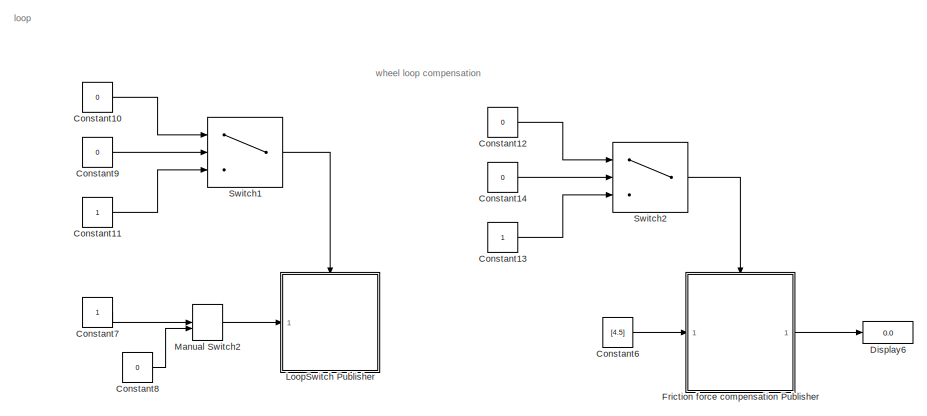
[diagram: root canvas - part 1/3, top right region]
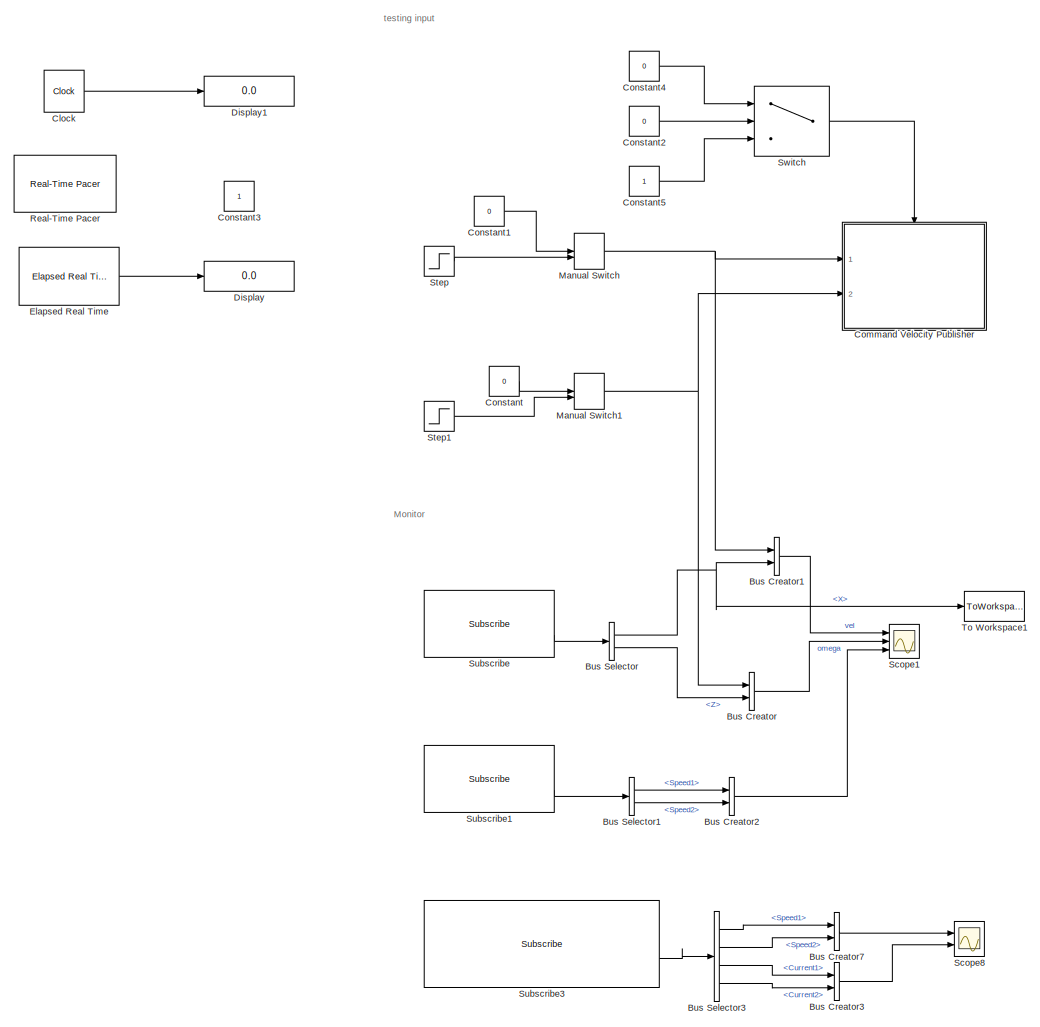
[diagram: root canvas - part 2/3, middle left region]
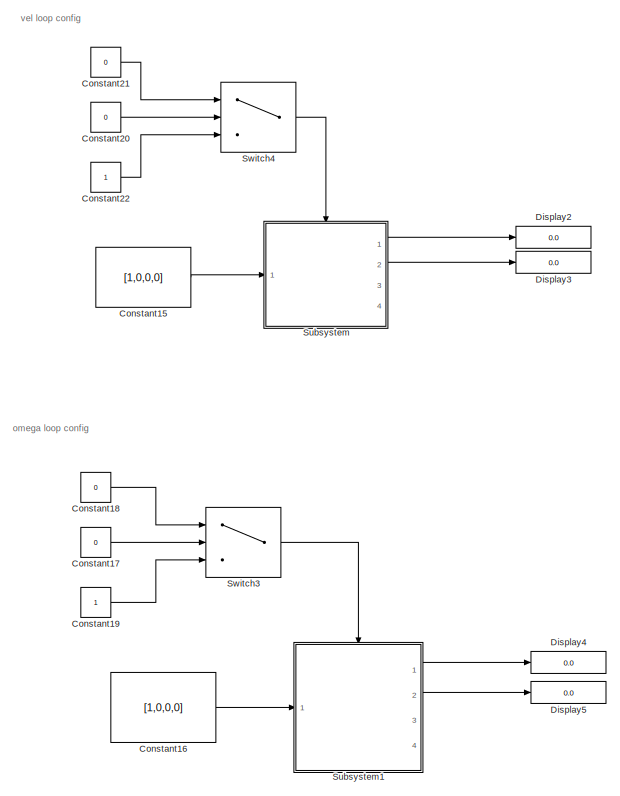
[diagram: root canvas - part 3/3, bottom right region]
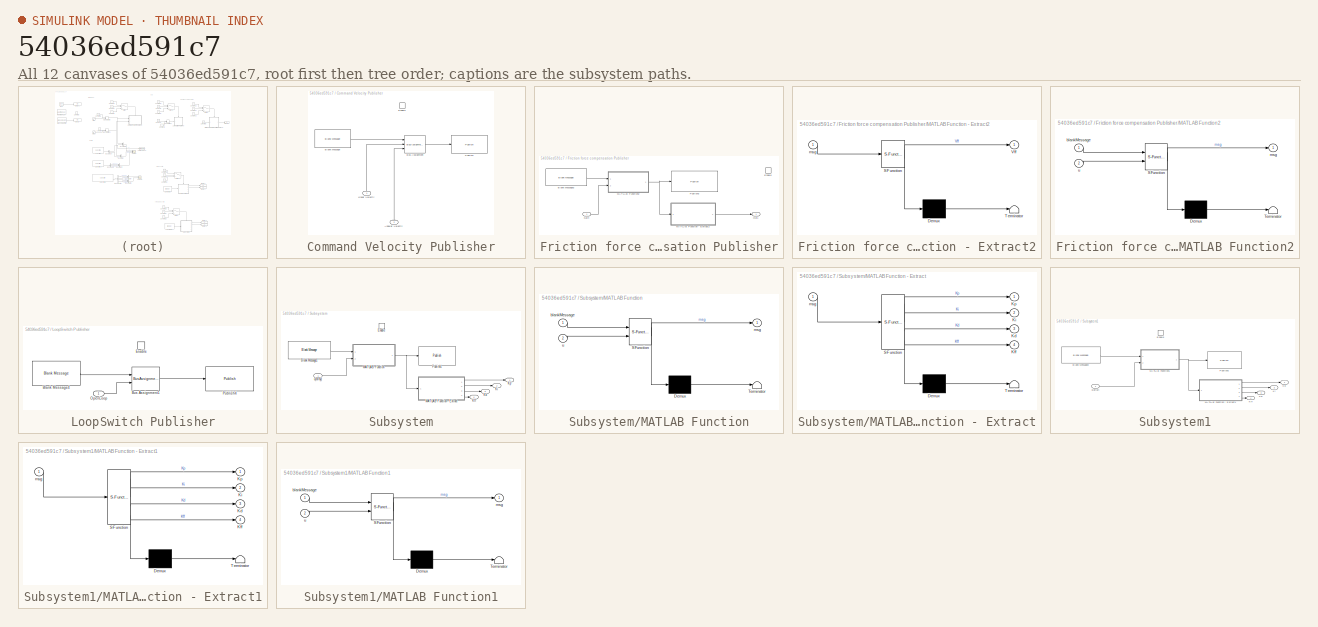
[diagram: thumbnail index - all 12 canvases of the model, root first then tree order]
MODEL slx_54036ed591c7
KIND model
CONFIG AbsTol = auto
CONFIG FixedStep = 0.1
CONFIG MaxStep = auto
CONFIG MinStep = auto
CONFIG RelTol = 1e-3
CONFIG SampleTimeConstraint = Unconstrained
CONFIG Solver = FixedStepDiscrete
CONFIG SolverMode = Auto
CONFIG SolverName = FixedStepDiscrete
CONFIG StartTime = 0.0
CONFIG StopTime = inf
BLOCK [BusCreator] Bus Creator
  DisplayOption = bar
  InheritFromInputs = on
  Inputs = 2
  Ports = [2, 1]
BLOCK [BusCreator] Bus Creator1
  DisplayOption = bar
  InheritFromInputs = on
  Inputs = 2
  Ports = [2, 1]
BLOCK [BusCreator] Bus Creator2
  DisplayOption = bar
  InheritFromInputs = on
  Inputs = 2
  Ports = [2, 1]
BLOCK [BusCreator] Bus Creator3
  DisplayOption = bar
  InheritFromInputs = on
  Inputs = 2
  Ports = [2, 1]
BLOCK [BusCreator] Bus Creator7
  DisplayOption = bar
  InheritFromInputs = on
  Inputs = 2
  Ports = [2, 1]
BLOCK [BusSelector] Bus Selector
  OutputSignals = Linear.X,Angular.Z
  Ports = [1, 2]
BLOCK [BusSelector] Bus Selector1
  OutputSignals = Speed1,Speed2
  Ports = [1, 2]
BLOCK [BusSelector] Bus Selector3
  OutputSignals = Speed1,Speed2,Current1,Current2
  Ports = [1, 4]
BLOCK [Clock] Clock
  Decimation = 1
  DisplayTime = on
BLOCK [SubSystem] Command Velocity Publisher
  Ports = [2, 0, 1]
  RequestExecContextInheritance = off
  Variant = off
BLOCK [Inport] Command Velocity Publisher/Angular Velocity
  IconDisplay = Port number
  Port = 2
BLOCK [Reference] Command Velocity Publisher/Blank Message  REF=robotlib/Blank Message
  Ports = [0, 1]
  SourceBlock = robotlib/Blank Message
  SourceLibraryInfo = This block requires Robotics System Toolbox
  SourceType = ROS Blank Message
BLOCK [BusAssignment] Command Velocity Publisher/Bus Assignment
  AssignedSignals = Linear.X,Angular.Z
  Ports = [3, 1]
BLOCK [EnablePort] Command Velocity Publisher/Enable
  Ports = []
BLOCK [Inport] Command Velocity Publisher/Linear Velocity
  IconDisplay = Port number
BLOCK [Reference] Command Velocity Publisher/Publish  REF=robotlib/Publish
  Ports = [1]
  SourceBlock = robotlib/Publish
  SourceLibraryInfo = This block requires Robotics System Toolbox
  SourceType = ROS Publish
BLOCK [Constant] Constant
  OutDataTypeStr = double
  SampleTime = -1
  Value = 0
BLOCK [Constant] Constant1
  OutDataTypeStr = double
  SampleTime = -1
  Value = 0
BLOCK [Constant] Constant10
  OutDataTypeStr = boolean
  SampleTime = -1
  Value = 0
BLOCK [Constant] Constant11
  OutDataTypeStr = boolean
  SampleTime = -1
BLOCK [Constant] Constant12
  OutDataTypeStr = boolean
  SampleTime = -1
  Value = 0
BLOCK [Constant] Constant13
  OutDataTypeStr = boolean
  SampleTime = -1
BLOCK [Constant] Constant14
  OutDataTypeStr = double
  SampleTime = -1
  Value = 0
BLOCK [Constant] Constant15
  Value = [1,0,0,0]
BLOCK [Constant] Constant16
  Value = [1,0,0,0]
BLOCK [Constant] Constant17
  OutDataTypeStr = double
  SampleTime = -1
  Value = 0
BLOCK [Constant] Constant18
  OutDataTypeStr = boolean
  SampleTime = -1
  Value = 0
BLOCK [Constant] Constant19
  OutDataTypeStr = boolean
  SampleTime = -1
BLOCK [Constant] Constant2
  OutDataTypeStr = double
  SampleTime = -1
  Value = 0
BLOCK [Constant] Constant20
  OutDataTypeStr = double
  SampleTime = -1
  Value = 0
BLOCK [Constant] Constant21
  OutDataTypeStr = boolean
  SampleTime = -1
  Value = 0
BLOCK [Constant] Constant22
  OutDataTypeStr = boolean
  SampleTime = -1
BLOCK [Constant] Constant3
  IOType = siggen
BLOCK [Constant] Constant4
  OutDataTypeStr = boolean
  SampleTime = -1
  Value = 0
BLOCK [Constant] Constant5
  OutDataTypeStr = boolean
  SampleTime = -1
BLOCK [Constant] Constant6
  Value = [4.5]
BLOCK [Constant] Constant7
  OutDataTypeStr = boolean
BLOCK [Constant] Constant8
  OutDataTypeStr = boolean
  Value = 0
BLOCK [Constant] Constant9
  OutDataTypeStr = double
  SampleTime = -1
  Value = 0
BLOCK [Display] Display
  Decimation = 1
  Ports = [1]
BLOCK [Display] Display1
  Decimation = 1
  Ports = [1]
BLOCK [Display] Display2
  Decimation = 1
  Ports = [1]
BLOCK [Display] Display3
  Decimation = 1
  Ports = [1]
BLOCK [Display] Display4
  Decimation = 1
  Ports = [1]
BLOCK [Display] Display5
  Decimation = 1
  Ports = [1]
BLOCK [Display] Display6
  Decimation = 1
  Ports = [1]
BLOCK [Reference] Elapsed Real Time  REF=realtime_pacer_lib/Elapsed Real Time
  Ports = [0, 1]
  SourceBlock = realtime_pacer_lib/Elapsed Real Time
  SourceType = RealTime_Elapsed
BLOCK [SubSystem] Friction force compensation Publisher
  Ports = [1, 1, 1]
  RequestExecContextInheritance = off
  Variant = off
BLOCK [Reference] Friction force compensation Publisher/Blank Message3  REF=robotlib/Blank Message
  Ports = [0, 1]
  SourceBlock = robotlib/Blank Message
  SourceLibraryInfo = This block requires Robotics System Toolbox
  SourceType = ROS Blank Message
BLOCK [EnablePort] Friction force compensation Publisher/Enable
  Ports = []
BLOCK [Inport] Friction force compensation Publisher/Gain
  IconDisplay = Port number
BLOCK [SubSystem] Friction force compensation Publisher/MATLAB Function - Extract2
  ErrorFcn = Stateflow.Translate.translate
  PermitHierarchicalResolution = ExplicitOnly
  Ports = [1, 1]
  RequestExecContextInheritance = off
  SFBlockType = MATLAB Function
  TreatAsAtomicUnit = on
  Variant = off
BLOCK [Demux] Friction force compensation Publisher/MATLAB Function - Extract2/ Demux 
  Outputs = 1
  Ports = [1, 1]
BLOCK [S-Function] Friction force compensation Publisher/MATLAB Function - Extract2/ SFunction 
  EnableBusSupport = on
  FunctionName = sf_sfun
  PortCounts = [1 2]
  Ports = [1, 2]
  SFunctionDeploymentMode = off
  Tag = Stateflow S-Function angelbot_ROScommand 4
BLOCK [Terminator] Friction force compensation Publisher/MATLAB Function - Extract2/ Terminator 
BLOCK [Outport] Friction force compensation Publisher/MATLAB Function - Extract2/Vff
  IconDisplay = Port number
BLOCK [Inport] Friction force compensation Publisher/MATLAB Function - Extract2/msg
  IconDisplay = Port number
BLOCK [SubSystem] Friction force compensation Publisher/MATLAB Function2
  ErrorFcn = Stateflow.Translate.translate
  PermitHierarchicalResolution = ExplicitOnly
  Ports = [2, 1]
  RequestExecContextInheritance = off
  SFBlockType = MATLAB Function
  TreatAsAtomicUnit = on
  Variant = off
BLOCK [Demux] Friction force compensation Publisher/MATLAB Function2/ Demux 
  Outputs = 1
  Ports = [1, 1]
BLOCK [S-Function] Friction force compensation Publisher/MATLAB Function2/ SFunction 
  EnableBusSupport = on
  FunctionName = sf_sfun
  PortCounts = [2 2]
  Ports = [2, 2]
  SFunctionDeploymentMode = off
  Tag = Stateflow S-Function angelbot_ROScommand 5
BLOCK [Terminator] Friction force compensation Publisher/MATLAB Function2/ Terminator 
BLOCK [Inport] Friction force compensation Publisher/MATLAB Function2/blankMessage
  IconDisplay = Port number
BLOCK [Outport] Friction force compensation Publisher/MATLAB Function2/msg
  IconDisplay = Port number
BLOCK [Inport] Friction force compensation Publisher/MATLAB Function2/u
  IconDisplay = Port number
  Port = 2
BLOCK [Outport] Friction force compensation Publisher/Out1
  IconDisplay = Port number
BLOCK [Reference] Friction force compensation Publisher/Publish3  REF=robotlib/Publish
  Ports = [1]
  SourceBlock = robotlib/Publish
  SourceLibraryInfo = This block requires Robotics System Toolbox
  SourceType = ROS Publish
BLOCK [SubSystem] LoopSwitch Publisher
  Ports = [1, 0, 1]
  RequestExecContextInheritance = off
  Variant = off
BLOCK [Reference] LoopSwitch Publisher/Blank Message4  REF=robotlib/Blank Message
  Ports = [0, 1]
  SourceBlock = robotlib/Blank Message
  SourceLibraryInfo = This block requires Robotics System Toolbox
  SourceType = ROS Blank Message
BLOCK [BusAssignment] LoopSwitch Publisher/Bus Assignment1
  AssignedSignals = Data
  Ports = [2, 1]
BLOCK [EnablePort] LoopSwitch Publisher/Enable
  Ports = []
BLOCK [Inport] LoopSwitch Publisher/OpenLoop
  IconDisplay = Port number
BLOCK [Reference] LoopSwitch Publisher/Publish4  REF=robotlib/Publish
  Ports = [1]
  SourceBlock = robotlib/Publish
  SourceLibraryInfo = This block requires Robotics System Toolbox
  SourceType = ROS Publish
BLOCK [ManualSwitch] Manual Switch
BLOCK [ManualSwitch] Manual Switch1
BLOCK [ManualSwitch] Manual Switch2
BLOCK [Reference] Real-Time Pacer  REF=realtime_pacer_lib/Real-Time Pacer
  Ports = []
  SourceBlock = realtime_pacer_lib/Real-Time Pacer
  SourceType = RealTime_Pacer
BLOCK [Scope] Scope1
  NumInputPorts = 3
  Ports = [3]
  ScopeSpecificationString = Simulink.scopes.TimeScopeBlockCfg('CurrentConfiguration', extmgr.ConfigurationSet(extmgr.Configuration('Core','General UI',true),extmgr.Configuration('Core','Source UI',true),extmgr.Configuration('Sources','WiredSimulink',true,'DataLoggingVariableName','ScopeV','DataLogging',true,'DataLoggingSaveFormat','StructureWithTime'),extmgr.Configuration('Visuals','Time Domain',true,'SerializedDisplays',{st...<+3113ch>
BLOCK [Scope] Scope8
  NumInputPorts = 2
  Ports = [2]
  ScopeSpecificationString = Simulink.scopes.TimeScopeBlockCfg('CurrentConfiguration', extmgr.ConfigurationSet(extmgr.Configuration('Core','General UI',true),extmgr.Configuration('Core','Source UI',true),extmgr.Configuration('Sources','WiredSimulink',true,'DataLoggingVariableName','ScopeData1','DataLogging',true,'DataLoggingSaveFormat','StructureWithTime'),extmgr.Configuration('Visuals','Time Domain',true,'SerializedDisplays'...<+2320ch>
BLOCK [Step] Step
  After = 6
  Time = 0
BLOCK [Step] Step1
  After = 0
  Time = 0
BLOCK [Reference] Subscribe  REF=robotlib/Subscribe
  Ports = [0, 2]
  SourceBlock = robotlib/Subscribe
  SourceLibraryInfo = This block requires Robotics System Toolbox
  SourceType = ROS Subscribe
BLOCK [Reference] Subscribe1  REF=robotlib/Subscribe
  Ports = [0, 2]
  SourceBlock = robotlib/Subscribe
  SourceLibraryInfo = This block requires Robotics System Toolbox
  SourceType = ROS Subscribe
BLOCK [Reference] Subscribe3  REF=robotlib/Subscribe
  Ports = [0, 2]
  SourceBlock = robotlib/Subscribe
  SourceLibraryInfo = This block requires Robotics System Toolbox
  SourceType = ROS Subscribe
BLOCK [SubSystem] Subsystem
  Ports = [1, 4, 1]
  RequestExecContextInheritance = off
  Variant = off
BLOCK [Reference] Subsystem/Blank Message1  REF=robotlib/Blank Message
  Ports = [0, 1]
  SourceBlock = robotlib/Blank Message
  SourceLibraryInfo = This block requires Robotics System Toolbox
  SourceType = ROS Blank Message
BLOCK [EnablePort] Subsystem/Enable
  Ports = []
BLOCK [Outport] Subsystem/Kd
  IconDisplay = Port number
  Port = 3
BLOCK [Outport] Subsystem/Kff
  IconDisplay = Port number
  Port = 4
BLOCK [Outport] Subsystem/Ki
  IconDisplay = Port number
  Port = 2
BLOCK [Outport] Subsystem/Kp
  IconDisplay = Port number
BLOCK [SubSystem] Subsystem/MATLAB Function
  ErrorFcn = Stateflow.Translate.translate
  PermitHierarchicalResolution = ExplicitOnly
  Ports = [2, 1]
  RequestExecContextInheritance = off
  SFBlockType = MATLAB Function
  TreatAsAtomicUnit = on
  Variant = off
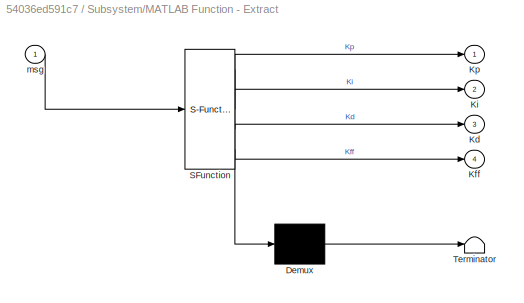
BLOCK [SubSystem] Subsystem/MATLAB Function - Extract
  ErrorFcn = Stateflow.Translate.translate
  PermitHierarchicalResolution = ExplicitOnly
  Ports = [1, 4]
  RequestExecContextInheritance = off
  SFBlockType = MATLAB Function
  TreatAsAtomicUnit = on
  Variant = off
BLOCK [Demux] Subsystem/MATLAB Function - Extract/ Demux 
  Outputs = 1
  Ports = [1, 1]
BLOCK [S-Function] Subsystem/MATLAB Function - Extract/ SFunction 
  EnableBusSupport = on
  FunctionName = sf_sfun
  PortCounts = [1 5]
  Ports = [1, 5]
  SFunctionDeploymentMode = off
  Tag = Stateflow S-Function angelbot_ROScommand 6
BLOCK [Terminator] Subsystem/MATLAB Function - Extract/ Terminator 
BLOCK [Outport] Subsystem/MATLAB Function - Extract/Kd
  IconDisplay = Port number
  Port = 3
BLOCK [Outport] Subsystem/MATLAB Function - Extract/Kff
  IconDisplay = Port number
  Port = 4
BLOCK [Outport] Subsystem/MATLAB Function - Extract/Ki
  IconDisplay = Port number
  Port = 2
BLOCK [Outport] Subsystem/MATLAB Function - Extract/Kp
  IconDisplay = Port number
BLOCK [Inport] Subsystem/MATLAB Function - Extract/msg
  IconDisplay = Port number
BLOCK [Demux] Subsystem/MATLAB Function/ Demux 
  Outputs = 1
  Ports = [1, 1]
BLOCK [S-Function] Subsystem/MATLAB Function/ SFunction 
  EnableBusSupport = on
  FunctionName = sf_sfun
  PortCounts = [2 2]
  Ports = [2, 2]
  SFunctionDeploymentMode = off
  Tag = Stateflow S-Function angelbot_ROScommand 2
BLOCK [Terminator] Subsystem/MATLAB Function/ Terminator 
BLOCK [Inport] Subsystem/MATLAB Function/blankMessage
  IconDisplay = Port number
BLOCK [Outport] Subsystem/MATLAB Function/msg
  IconDisplay = Port number
BLOCK [Inport] Subsystem/MATLAB Function/u
  IconDisplay = Port number
  Port = 2
BLOCK [Reference] Subsystem/Publish1  REF=robotlib/Publish
  Ports = [1]
  SourceBlock = robotlib/Publish
  SourceLibraryInfo = This block requires Robotics System Toolbox
  SourceType = ROS Publish
BLOCK [Inport] Subsystem/u(array)
  IconDisplay = Port number
BLOCK [SubSystem] Subsystem1
  Ports = [1, 4, 1]
  RequestExecContextInheritance = off
  Variant = off
BLOCK [Reference] Subsystem1/Blank Message2  REF=robotlib/Blank Message
  Ports = [0, 1]
  SourceBlock = robotlib/Blank Message
  SourceLibraryInfo = This block requires Robotics System Toolbox
  SourceType = ROS Blank Message
BLOCK [EnablePort] Subsystem1/Enable
  Ports = []
BLOCK [Outport] Subsystem1/Kd
  IconDisplay = Port number
  Port = 3
BLOCK [Outport] Subsystem1/Kff
  IconDisplay = Port number
  Port = 4
BLOCK [Outport] Subsystem1/Ki
  IconDisplay = Port number
  Port = 2
BLOCK [Outport] Subsystem1/Kp
  IconDisplay = Port number
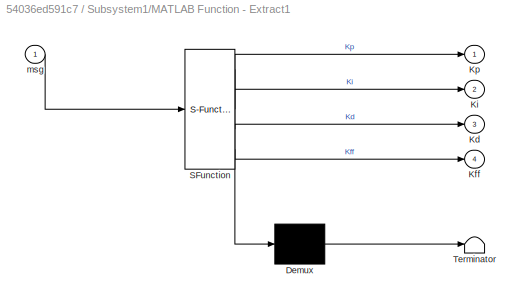
BLOCK [SubSystem] Subsystem1/MATLAB Function - Extract1
  ErrorFcn = Stateflow.Translate.translate
  PermitHierarchicalResolution = ExplicitOnly
  Ports = [1, 4]
  RequestExecContextInheritance = off
  SFBlockType = MATLAB Function
  TreatAsAtomicUnit = on
  Variant = off
BLOCK [Demux] Subsystem1/MATLAB Function - Extract1/ Demux 
  Outputs = 1
  Ports = [1, 1]
BLOCK [S-Function] Subsystem1/MATLAB Function - Extract1/ SFunction 
  EnableBusSupport = on
  FunctionName = sf_sfun
  PortCounts = [1 5]
  Ports = [1, 5]
  SFunctionDeploymentMode = off
  Tag = Stateflow S-Function angelbot_ROScommand 1
BLOCK [Terminator] Subsystem1/MATLAB Function - Extract1/ Terminator 
BLOCK [Outport] Subsystem1/MATLAB Function - Extract1/Kd
  IconDisplay = Port number
  Port = 3
BLOCK [Outport] Subsystem1/MATLAB Function - Extract1/Kff
  IconDisplay = Port number
  Port = 4
BLOCK [Outport] Subsystem1/MATLAB Function - Extract1/Ki
  IconDisplay = Port number
  Port = 2
BLOCK [Outport] Subsystem1/MATLAB Function - Extract1/Kp
  IconDisplay = Port number
BLOCK [Inport] Subsystem1/MATLAB Function - Extract1/msg
  IconDisplay = Port number
BLOCK [SubSystem] Subsystem1/MATLAB Function1
  ErrorFcn = Stateflow.Translate.translate
  PermitHierarchicalResolution = ExplicitOnly
  Ports = [2, 1]
  RequestExecContextInheritance = off
  SFBlockType = MATLAB Function
  TreatAsAtomicUnit = on
  Variant = off
BLOCK [Demux] Subsystem1/MATLAB Function1/ Demux 
  Outputs = 1
  Ports = [1, 1]
BLOCK [S-Function] Subsystem1/MATLAB Function1/ SFunction 
  EnableBusSupport = on
  FunctionName = sf_sfun
  PortCounts = [2 2]
  Ports = [2, 2]
  SFunctionDeploymentMode = off
  Tag = Stateflow S-Function angelbot_ROScommand 3
BLOCK [Terminator] Subsystem1/MATLAB Function1/ Terminator 
BLOCK [Inport] Subsystem1/MATLAB Function1/blankMessage
  IconDisplay = Port number
BLOCK [Outport] Subsystem1/MATLAB Function1/msg
  IconDisplay = Port number
BLOCK [Inport] Subsystem1/MATLAB Function1/u
  IconDisplay = Port number
  Port = 2
BLOCK [Reference] Subsystem1/Publish2  REF=robotlib/Publish
  Ports = [1]
  SourceBlock = robotlib/Publish
  SourceLibraryInfo = This block requires Robotics System Toolbox
  SourceType = ROS Publish
BLOCK [Inport] Subsystem1/u(array)
  IconDisplay = Port number
BLOCK [Switch] Switch
  InputSameDT = off
  SaturateOnIntegerOverflow = off
BLOCK [Switch] Switch1
  InputSameDT = off
  SaturateOnIntegerOverflow = off
BLOCK [Switch] Switch2
  InputSameDT = off
  SaturateOnIntegerOverflow = off
BLOCK [Switch] Switch3
  InputSameDT = off
  SaturateOnIntegerOverflow = off
BLOCK [Switch] Switch4
  InputSameDT = off
  SaturateOnIntegerOverflow = off
BLOCK [ToWorkspace] To Workspace1
  FixptAsFi = on
  MaxDataPoints = inf
  Ports = [1]
  SampleTime = -1
  Save2DSignal = 3-D array (concatenate along third dimension)
  SaveFormat = Timeseries
  VariableName = simout1
ANNOTATION (root): Monitor
ANNOTATION (root): loop
ANNOTATION (root): omega loop config
ANNOTATION (root): testing input
ANNOTATION (root): vel loop config
ANNOTATION (root): wheel loop compensation
LINE Bus Creator1:1 -> Scope1:1
LINE Bus Creator2:1 -> Scope1:3
LINE Bus Creator3:1 -> Scope8:2
LINE Bus Creator7:1 -> Scope8:1
LINE Bus Creator:1 -> Scope1:2
LINE Bus Selector1:1 -> Bus Creator2:1
LINE Bus Selector1:2 -> Bus Creator2:2
LINE Bus Selector3:1 -> Bus Creator7:1
LINE Bus Selector3:2 -> Bus Creator7:2
LINE Bus Selector3:3 -> Bus Creator3:1
LINE Bus Selector3:4 -> Bus Creator3:2
NET Bus Selector:1 -> Bus Creator1:2, To Workspace1:1
LINE Bus Selector:2 -> Bus Creator:2
LINE Clock:1 -> Display1:1
LINE Command Velocity Publisher/Angular Velocity:1 -> Command Velocity Publisher/Bus Assignment:3
LINE Command Velocity Publisher/Blank Message:1 -> Command Velocity Publisher/Bus Assignment:1
LINE Command Velocity Publisher/Bus Assignment:1 -> Command Velocity Publisher/Publish:1
LINE Command Velocity Publisher/Linear Velocity:1 -> Command Velocity Publisher/Bus Assignment:2
LINE Constant10:1 -> Switch1:1
LINE Constant11:1 -> Switch1:3
LINE Constant12:1 -> Switch2:1
LINE Constant13:1 -> Switch2:3
LINE Constant14:1 -> Switch2:2
LINE Constant15:1 -> Subsystem:1
LINE Constant16:1 -> Subsystem1:1
LINE Constant17:1 -> Switch3:2
LINE Constant18:1 -> Switch3:1
LINE Constant19:1 -> Switch3:3
LINE Constant1:1 -> Manual Switch:1
LINE Constant20:1 -> Switch4:2
LINE Constant21:1 -> Switch4:1
LINE Constant22:1 -> Switch4:3
LINE Constant2:1 -> Switch:2
LINE Constant4:1 -> Switch:1
LINE Constant5:1 -> Switch:3
LINE Constant6:1 -> Friction force compensation Publisher:1
LINE Constant7:1 -> Manual Switch2:1
LINE Constant8:1 -> Manual Switch2:2
LINE Constant9:1 -> Switch1:2
LINE Constant:1 -> Manual Switch1:1
LINE Elapsed Real Time:1 -> Display:1
LINE Friction force compensation Publisher/Blank Message3:1 -> Friction force compensation Publisher/MATLAB Function2:1
LINE Friction force compensation Publisher/Gain:1 -> Friction force compensation Publisher/MATLAB Function2:2
LINE Friction force compensation Publisher/MATLAB Function - Extract2:1 -> Friction force compensation Publisher/Out1:1
NET Friction force compensation Publisher/MATLAB Function2:1 -> Friction force compensation Publisher/MATLAB Function - Extract2:1, Friction force compensation Publisher/Publish3:1
LINE Friction force compensation Publisher:1 -> Display6:1
LINE LoopSwitch Publisher/Blank Message4:1 -> LoopSwitch Publisher/Bus Assignment1:1
LINE LoopSwitch Publisher/Bus Assignment1:1 -> LoopSwitch Publisher/Publish4:1
LINE LoopSwitch Publisher/OpenLoop:1 -> LoopSwitch Publisher/Bus Assignment1:2
NET Manual Switch1:1 -> Bus Creator:1, Command Velocity Publisher:2
LINE Manual Switch2:1 -> LoopSwitch Publisher:1
NET Manual Switch:1 -> Bus Creator1:1, Command Velocity Publisher:1
LINE Step1:1 -> Manual Switch1:2
LINE Step:1 -> Manual Switch:2
LINE Subscribe1:2 -> Bus Selector1:1
LINE Subscribe3:2 -> Bus Selector3:1
LINE Subscribe:2 -> Bus Selector:1
LINE Subsystem/Blank Message1:1 -> Subsystem/MATLAB Function:1
LINE Subsystem/MATLAB Function - Extract:1 -> Subsystem/Kp:1
LINE Subsystem/MATLAB Function - Extract:2 -> Subsystem/Ki:1
LINE Subsystem/MATLAB Function - Extract:3 -> Subsystem/Kd:1
LINE Subsystem/MATLAB Function - Extract:4 -> Subsystem/Kff:1
NET Subsystem/MATLAB Function:1 -> Subsystem/MATLAB Function - Extract:1, Subsystem/Publish1:1
LINE Subsystem/u(array):1 -> Subsystem/MATLAB Function:2
LINE Subsystem1/Blank Message2:1 -> Subsystem1/MATLAB Function1:1
LINE Subsystem1/MATLAB Function - Extract1:1 -> Subsystem1/Kp:1
LINE Subsystem1/MATLAB Function - Extract1:2 -> Subsystem1/Ki:1
LINE Subsystem1/MATLAB Function - Extract1:3 -> Subsystem1/Kd:1
LINE Subsystem1/MATLAB Function - Extract1:4 -> Subsystem1/Kff:1
NET Subsystem1/MATLAB Function1:1 -> Subsystem1/MATLAB Function - Extract1:1, Subsystem1/Publish2:1
LINE Subsystem1/u(array):1 -> Subsystem1/MATLAB Function1:2
LINE Subsystem1:1 -> Display4:1
LINE Subsystem1:2 -> Display5:1
LINE Subsystem:1 -> Display2:1
LINE Subsystem:2 -> Display3:1
LINE Switch1:1 -> LoopSwitch Publisher:enable
LINE Switch2:1 -> Friction force compensation Publisher:enable
LINE Switch3:1 -> Subsystem1:enable
LINE Switch4:1 -> Subsystem:enable
LINE Switch:1 -> Command Velocity Publisher:enable
note: NET lines group one-source signal fan-out (src -> all destinations, sorted); 1:1 wires keep LINE
CHART Subsystem1/MATLAB Function - Extract1 states=1 transitions=1
  STATE_LABEL 'eML_blk_kernel()'
  STATE_LABEL 'SCRIPT:\nfunction [Kp,Ki,Kd,Kff] = extractNestedArrayMessages(msg)\n%#codegen\n\n% geometry_msgs/PoseArray consists of\n%          Header: [1x1 Header]\n%           Poses: [nx1 Pose]\n\n% Poses is an array of "geometry_msgs/Pose", which consists of\n%        Position: [1x1 Point]\n%     Orientation: [1x1 Quaternion]\n\n% Position is "geometry_msgs/Point", which consists of\n%               X: 0\n%              ...<+358ch>'
CHART Subsystem/MATLAB Function states=1 transitions=1
  STATE_LABEL 'eML_blk_kernel()'
  STATE_LABEL 'SCRIPT:\nfunction msg = assignArrayMessages(blankMessage,u)\n%#codegen\n\n% To set datatype of MSG output:\n%  1. Create buses for this model: robotics.ros.createSimulinkBus(gcs)\n%  1. Click "Edit Data" in  Toolstrip to open "Ports and Data Manager"\n%  2. Select MSG and set datatype to "Bus: SL_Bus_<modelname>_<messageType>"\n% See: \n% http://www.mathworks.com/help/simulink/ug/create-structures-in-matla...<+912ch>'
CHART Subsystem1/MATLAB Function1 states=1 transitions=1
  STATE_LABEL 'eML_blk_kernel()'
  STATE_LABEL 'SCRIPT:\nfunction msg = assignArrayMessages(blankMessage,u)\n%#codegen\n\n% To set datatype of MSG output:\n%  1. Create buses for this model: robotics.ros.createSimulinkBus(gcs)\n%  1. Click "Edit Data" in  Toolstrip to open "Ports and Data Manager"\n%  2. Select MSG and set datatype to "Bus: SL_Bus_<modelname>_<messageType>"\n% See: \n% http://www.mathworks.com/help/simulink/ug/create-structures-in-matla...<+912ch>'
CHART Friction force compensation Publisher/MATLAB Function - Extract2 states=1 transitions=1
  STATE_LABEL 'eML_blk_kernel()'
  STATE_LABEL 'SCRIPT:\nfunction Vff   = extractNestedArrayMessages(msg)\n%#codegen\n\n% geometry_msgs/PoseArray consists of\n%          Header: [1x1 Header]\n%           Poses: [nx1 Pose]\n\n% Poses is an array of "geometry_msgs/Pose", which consists of\n%        Position: [1x1 Point]\n%     Orientation: [1x1 Quaternion]\n\n% Position is "geometry_msgs/Point", which consists of\n%               X: 0\n%               Y: 0\n%  ...<+295ch>'
CHART Friction force compensation Publisher/MATLAB Function2 states=1 transitions=1
  STATE_LABEL 'eML_blk_kernel()'
  STATE_LABEL 'SCRIPT:\nfunction msg = assignArrayMessages(blankMessage,u)\n%#codegen\n\n% To set datatype of MSG output:\n%  1. Create buses for this model: robotics.ros.createSimulinkBus(gcs)\n%  1. Click "Edit Data" in  Toolstrip to open "Ports and Data Manager"\n%  2. Select MSG and set datatype to "Bus: SL_Bus_<modelname>_<messageType>"\n% See: \n% http://www.mathworks.com/help/simulink/ug/create-structures-in-matla...<+825ch>'
CHART Subsystem/MATLAB Function - Extract states=1 transitions=1
  STATE_LABEL 'eML_blk_kernel()'
  STATE_LABEL 'SCRIPT:\nfunction [Kp,Ki,Kd,Kff] = extractNestedArrayMessages(msg)\n%#codegen\n\n% geometry_msgs/PoseArray consists of\n%          Header: [1x1 Header]\n%           Poses: [nx1 Pose]\n\n% Poses is an array of "geometry_msgs/Pose", which consists of\n%        Position: [1x1 Point]\n%     Orientation: [1x1 Quaternion]\n\n% Position is "geometry_msgs/Point", which consists of\n%               X: 0\n%              ...<+358ch>'
